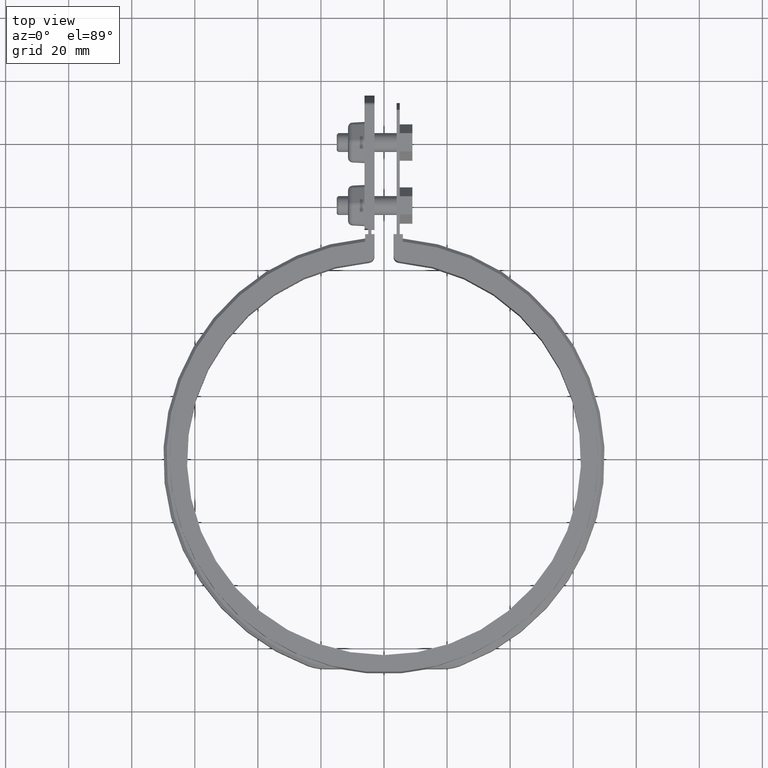
[diagram: clean part render]
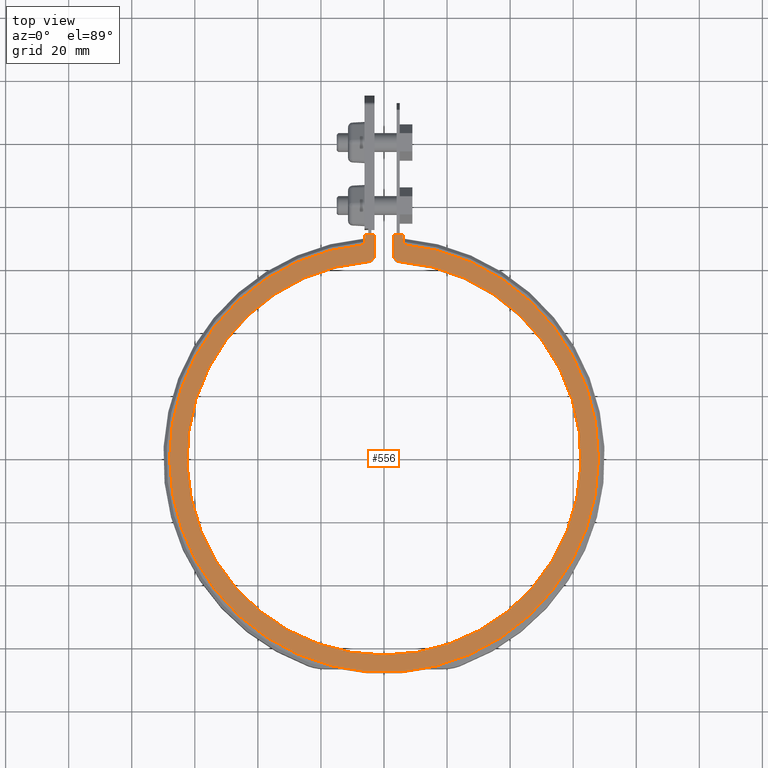
[diagram: same view with one face highlighted and labeled with its STEP entity id]
A machine part, top view. The second image highlights one B-rep face of the part: STEP entity #556.
In plain terms, the highlighted planar face has unit normal (0, 0, -1).
Its self-contained STEP definition (entity closure, byte-faithful):
#556 = ADVANCED_FACE( '', ( #1013 ), #1014, .F. );
#1013 = FACE_OUTER_BOUND( '', #2312, .T. );
#1014 = PLANE( '', #2313 );
#2312 = EDGE_LOOP( '', ( #4913, #4914, #4915, #4916, #4917, #4918, #4919, #4920, #4921, #4922 ) );
#2313 = AXIS2_PLACEMENT_3D( '', #4923, #4924, #4925 );
#4913 = ORIENTED_EDGE( '', *, *, #7181, .T. );
#4914 = ORIENTED_EDGE( '', *, *, #7142, .T. );
#4915 = ORIENTED_EDGE( '', *, *, #7128, .T. );
#4916 = ORIENTED_EDGE( '', *, *, #7150, .T. );
#4917 = ORIENTED_EDGE( '', *, *, #7136, .T. );
#4918 = ORIENTED_EDGE( '', *, *, #7114, .T. );
#4919 = ORIENTED_EDGE( '', *, *, #7104, .T. );
#4920 = ORIENTED_EDGE( '', *, *, #7182, .T. );
#4921 = ORIENTED_EDGE( '', *, *, #7183, .T. );
#4922 = ORIENTED_EDGE( '', *, *, #7184, .T. );
#4923 = CARTESIAN_POINT( '', ( 5.23287371063066, 66.7021222069070, 14.0000000000000 ) );
#4924 = DIRECTION( '', ( 0.000000000000000, 0.000000000000000, -1.00000000000000 ) );
#4925 = DIRECTION( '', ( 0.102941178312730, 0.994687445284993, 0.000000000000000 ) );
#7104 = EDGE_CURVE( '', #8193, #8194, #8195, .T. );
#7114 = EDGE_CURVE( '', #8207, #8193, #8208, .T. );
#7128 = EDGE_CURVE( '', #8233, #8231, #8234, .T. );
#7136 = EDGE_CURVE( '', #8248, #8207, #8249, .T. );
#7142 = EDGE_CURVE( '', #8257, #8233, #8258, .T. );
#7150 = EDGE_CURVE( '', #8231, #8248, #8271, .T. );
#7181 = EDGE_CURVE( '', #8317, #8257, #8318, .T. );
#7182 = EDGE_CURVE( '', #8194, #8319, #8320, .T. );
#7183 = EDGE_CURVE( '', #8319, #8321, #8322, .T. );
#7184 = EDGE_CURVE( '', #8321, #8317, #8323, .T. );
#8193 = VERTEX_POINT( '', #11771 );
#8194 = VERTEX_POINT( '', #11772 );
#8195 = LINE( '', #11773, #11774 );
#8207 = VERTEX_POINT( '', #11795 );
#8208 = LINE( '', #11796, #11797 );
#8231 = VERTEX_POINT( '', #11834 );
#8233 = VERTEX_POINT( '', #11837 );
#8234 = LINE( '', #11838, #11839 );
#8248 = VERTEX_POINT( '', #11862 );
#8249 = LINE( '', #11863, #11864 );
#8257 = VERTEX_POINT( '', #11879 );
#8258 = LINE( '', #11880, #11881 );
#8271 = CIRCLE( '', #11897, 68.0000000000000 );
#8317 = VERTEX_POINT( '', #11957 );
#8318 = LINE( '', #11958, #11959 );
#8319 = VERTEX_POINT( '', #11960 );
#8320 = CIRCLE( '', #11961, 2.00000000000000 );
#8321 = VERTEX_POINT( '', #11962 );
#8322 = CIRCLE( '', #11963, 62.5000000000000 );
#8323 = CIRCLE( '', #11964, 2.00000000000000 );
#11771 = CARTESIAN_POINT( '', ( 3.00000000000000, 71.0000000000000, 14.0000000000000 ) );
#11772 = CARTESIAN_POINT( '', ( 3.00000000000000, 64.3059095262636, 14.0000000000000 ) );
#11773 = CARTESIAN_POINT( '', ( 3.00000000000000, 71.0000000000000, 14.0000000000000 ) );
#11774 = VECTOR( '', #13699, 1000.00000000000 );
#11795 = CARTESIAN_POINT( '', ( 6.00000000000000, 71.0000000000000, 14.0000000000000 ) );
#11796 = CARTESIAN_POINT( '', ( 6.00000000000002, 71.0000000000000, 14.0000000000000 ) );
#11797 = VECTOR( '', #13709, 1000.00000000000 );
#11834 = CARTESIAN_POINT( '', ( -5.99999999999999, 67.7347768875044, 14.0000000000000 ) );
#11837 = CARTESIAN_POINT( '', ( -6.00000000000000, 71.0000000000000, 14.0000000000000 ) );
#11838 = CARTESIAN_POINT( '', ( -5.99999999999999, 71.0000000000000, 14.0000000000000 ) );
#11839 = VECTOR( '', #13725, 1000.00000000000 );
#11862 = CARTESIAN_POINT( '', ( 6.00000000000001, 67.7347768875045, 14.0000000000000 ) );
#11863 = CARTESIAN_POINT( '', ( 6.00000000000000, 67.7347768875044, 14.0000000000000 ) );
#11864 = VECTOR( '', #13732, 1000.00000000000 );
#11879 = CARTESIAN_POINT( '', ( -2.99999999999995, 71.0000000000000, 14.0000000000000 ) );
#11880 = CARTESIAN_POINT( '', ( -5.00000000000000, 71.0000000000000, 14.0000000000000 ) );
#11881 = VECTOR( '', #13737, 1000.00000000000 );
#11897 = AXIS2_PLACEMENT_3D( '', #13753, #13754, #13755 );
#11957 = CARTESIAN_POINT( '', ( -2.99999999999995, 64.3059095262636, 14.0000000000000 ) );
#11958 = CARTESIAN_POINT( '', ( -2.99999999999995, 64.3059095262636, 14.0000000000000 ) );
#11959 = VECTOR( '', #13818, 1000.00000000000 );
#11960 = CARTESIAN_POINT( '', ( 4.84496124031012, 62.3119278355267, 14.0000000000000 ) );
#11961 = AXIS2_PLACEMENT_3D( '', #13819, #13820, #13821 );
#11962 = CARTESIAN_POINT( '', ( -4.84496124031002, 62.3119278355267, 14.0000000000000 ) );
#11963 = AXIS2_PLACEMENT_3D( '', #13822, #13823, #13824 );
#11964 = AXIS2_PLACEMENT_3D( '', #13825, #13826, #13827 );
#13699 = DIRECTION( '', ( -5.55111512312578E-017, -1.00000000000000, 0.000000000000000 ) );
#13709 = DIRECTION( '', ( -1.00000000000000, 1.38777878078145E-017, 0.000000000000000 ) );
#13725 = DIRECTION( '', ( -6.93889390390723E-017, -1.00000000000000, 0.000000000000000 ) );
#13732 = DIRECTION( '', ( 6.93889390390723E-017, 1.00000000000000, 0.000000000000000 ) );
#13737 = DIRECTION( '', ( -1.00000000000000, 1.38777878078145E-017, 0.000000000000000 ) );
#13753 = CARTESIAN_POINT( '', ( 1.73472347597681E-015, 2.77555756156289E-014, 14.0000000000000 ) );
#13754 = DIRECTION( '', ( 0.000000000000000, 0.000000000000000, 1.00000000000000 ) );
#13755 = DIRECTION( '', ( 1.00000000000000, -1.38777878078145E-017, 0.000000000000000 ) );
#13818 = DIRECTION( '', ( 5.55111512312578E-017, 1.00000000000000, 0.000000000000000 ) );
#13819 = CARTESIAN_POINT( '', ( 5.00000000000000, 64.3059095262636, 14.0000000000000 ) );
#13820 = DIRECTION( '', ( 0.000000000000000, 0.000000000000000, 1.00000000000000 ) );
#13821 = DIRECTION( '', ( -1.00000000000000, 2.72004641033163E-015, 0.000000000000000 ) );
#13822 = CARTESIAN_POINT( '', ( 0.000000000000000, 0.000000000000000, 14.0000000000000 ) );
#13823 = DIRECTION( '', ( 0.000000000000000, 0.000000000000000, -1.00000000000000 ) );
#13824 = DIRECTION( '', ( 1.00000000000000, -5.55111512312578E-017, 0.000000000000000 ) );
#13825 = CARTESIAN_POINT( '', ( -4.99999999999995, 64.3059095262636, 14.0000000000000 ) );
#13826 = DIRECTION( '', ( 0.000000000000000, 0.000000000000000, 1.00000000000000 ) );
#13827 = DIRECTION( '', ( 1.00000000000000, 4.21884749357559E-015, 0.000000000000000 ) );